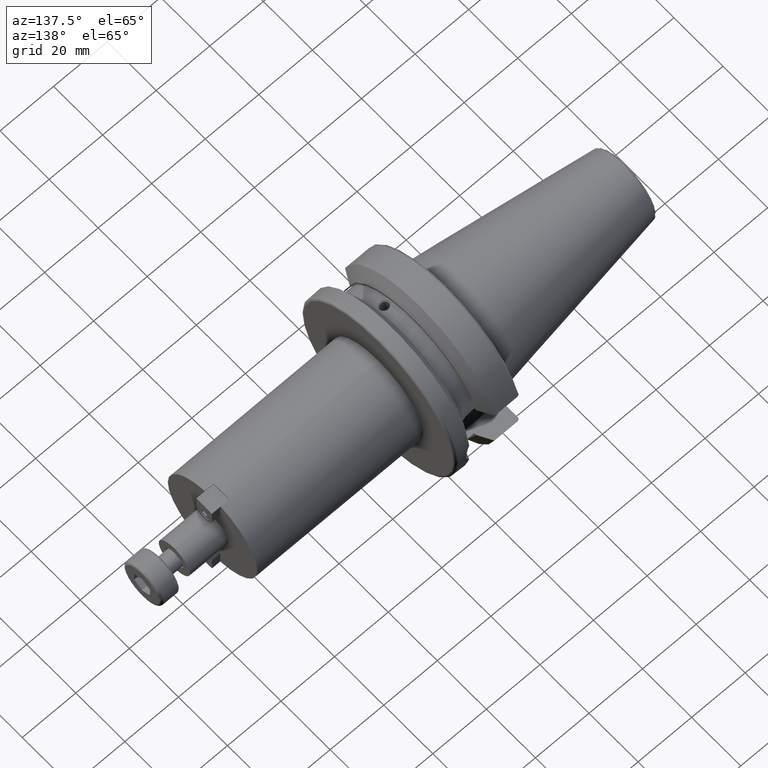
[diagram: clean part render]
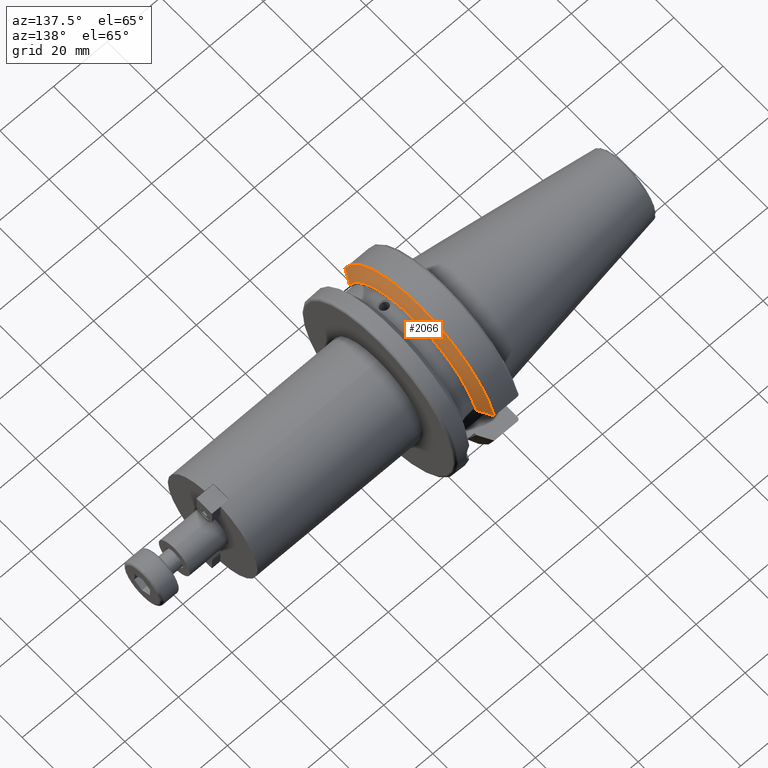
[diagram: same view with one face highlighted and labeled with its STEP entity id]
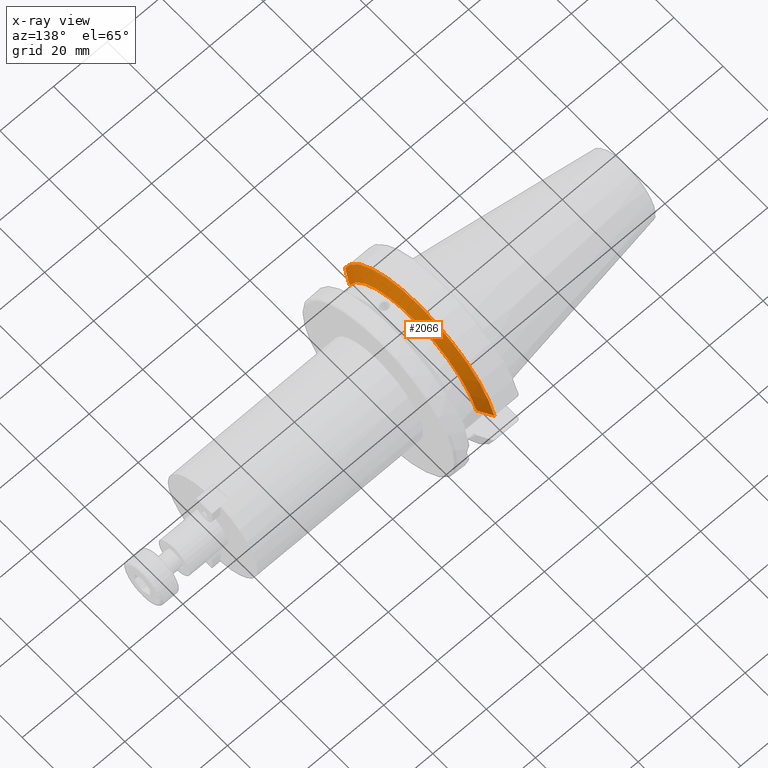
[diagram: x-ray of the same camera — body ghosted, the highlighted face saturated]
A machine part, auxiliary view. The second image highlights one B-rep face of the part: STEP entity #2066.
The next image is the same camera in x-ray: the body ghosted, the highlighted face saturated — about 0% of this face is hidden behind the body in this view.
In plain terms, the highlighted conical surface has half-angle 60.125 deg.
Its self-contained STEP definition (entity closure, byte-faithful):
#64=(
BOUNDED_CURVE()
B_SPLINE_CURVE(2,(#3557,#3558,#3559),.UNSPECIFIED.,.F.,.F.)
B_SPLINE_CURVE_WITH_KNOTS((3,3),(0.,0.52358279083281),.UNSPECIFIED.)
CURVE()
GEOMETRIC_REPRESENTATION_ITEM()
RATIONAL_B_SPLINE_CURVE((1.,1.00307360097546,1.))
REPRESENTATION_ITEM('')
);
#67=(
BOUNDED_CURVE()
B_SPLINE_CURVE(2,(#3717,#3718,#3719),.UNSPECIFIED.,.F.,.F.)
B_SPLINE_CURVE_WITH_KNOTS((3,3),(0.,0.52358279083281),.UNSPECIFIED.)
CURVE()
GEOMETRIC_REPRESENTATION_ITEM()
RATIONAL_B_SPLINE_CURVE((1.,1.00307360097546,1.))
REPRESENTATION_ITEM('')
);
#240=CIRCLE('',#2369,31.5000000000001);
#241=CIRCLE('',#2371,27.0940716549138);
#304=CONICAL_SURFACE('',#2370,29.2970358274569,1.0493792127616);
#374=FACE_OUTER_BOUND('',#512,.T.);
#512=EDGE_LOOP('',(#1686,#1687,#1688,#1689));
#929=VERTEX_POINT('',#3554);
#930=VERTEX_POINT('',#3556);
#961=VERTEX_POINT('',#3714);
#962=VERTEX_POINT('',#3716);
#1160=EDGE_CURVE('',#930,#929,#64,.T.);
#1205=EDGE_CURVE('',#962,#961,#67,.T.);
#1226=EDGE_CURVE('',#961,#930,#240,.T.);
#1227=EDGE_CURVE('',#962,#929,#241,.T.);
#1686=ORIENTED_EDGE('',*,*,#1160,.T.);
#1687=ORIENTED_EDGE('',*,*,#1227,.F.);
#1688=ORIENTED_EDGE('',*,*,#1205,.T.);
#1689=ORIENTED_EDGE('',*,*,#1226,.T.);
#2066=ADVANCED_FACE('',(#374),#304,.T.);
#2369=AXIS2_PLACEMENT_3D('',#3760,#2851,#2852);
#2370=AXIS2_PLACEMENT_3D('',#3761,#2853,#2854);
#2371=AXIS2_PLACEMENT_3D('',#3762,#2855,#2856);
#2851=DIRECTION('center_axis',(1.,0.,0.));
#2852=DIRECTION('ref_axis',(0.,0.,-1.));
#2853=DIRECTION('center_axis',(-1.,0.,0.));
#2854=DIRECTION('ref_axis',(0.,1.,0.));
#2855=DIRECTION('center_axis',(1.,0.,0.));
#2856=DIRECTION('ref_axis',(0.,0.,-1.));
#3554=CARTESIAN_POINT('',(14.1,-25.8705666509569,8.05));
#3556=CARTESIAN_POINT('',(11.5690363073382,-30.4540227227866,8.05));
#3557=CARTESIAN_POINT('Ctrl Pts',(11.5690363073382,-30.4540227227866,8.05));
#3558=CARTESIAN_POINT('Ctrl Pts',(12.9374976962938,-27.989970265181,8.05));
#3559=CARTESIAN_POINT('Ctrl Pts',(14.1,-25.8705666509569,8.05));
#3714=CARTESIAN_POINT('',(11.5690363073382,30.4540227227866,8.05));
#3716=CARTESIAN_POINT('',(14.1,25.8705666509569,8.05));
#3717=CARTESIAN_POINT('Ctrl Pts',(14.1,25.8705666509569,8.05));
#3718=CARTESIAN_POINT('Ctrl Pts',(12.9374976962938,27.989970265181,8.05));
#3719=CARTESIAN_POINT('Ctrl Pts',(11.5690363073382,30.4540227227866,8.05));
#3760=CARTESIAN_POINT('Origin',(11.5690363073382,0.,0.));
#3761=CARTESIAN_POINT('Origin',(12.8345181536691,0.,0.));
#3762=CARTESIAN_POINT('Origin',(14.1,0.,0.));